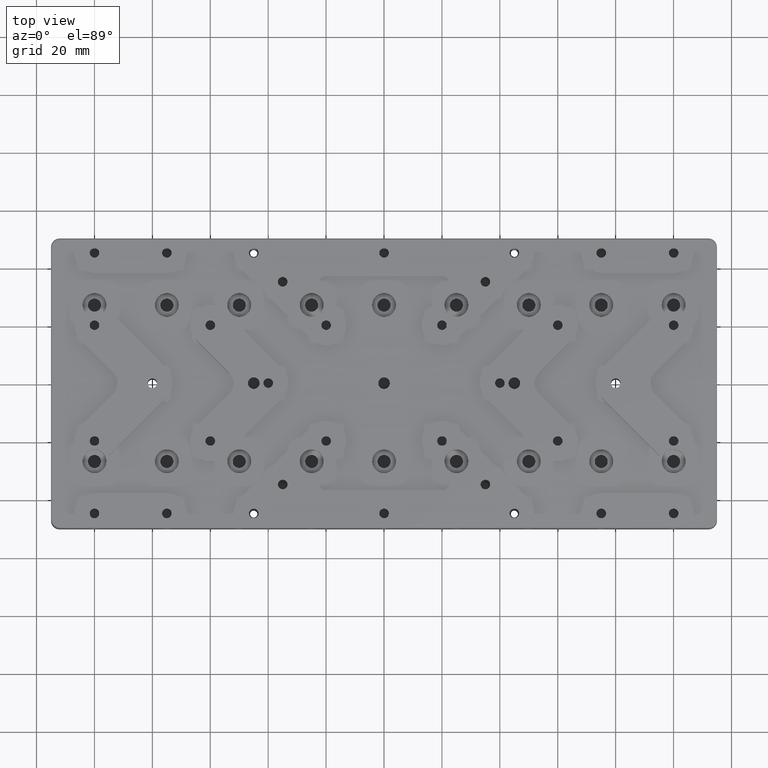
[diagram: clean part render]
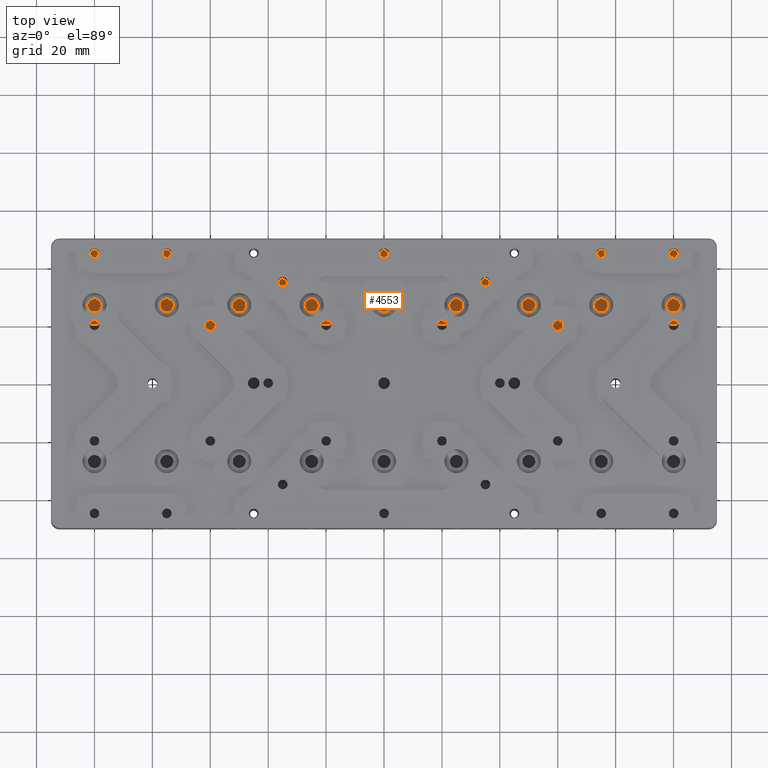
[diagram: same view with one face highlighted and labeled with its STEP entity id]
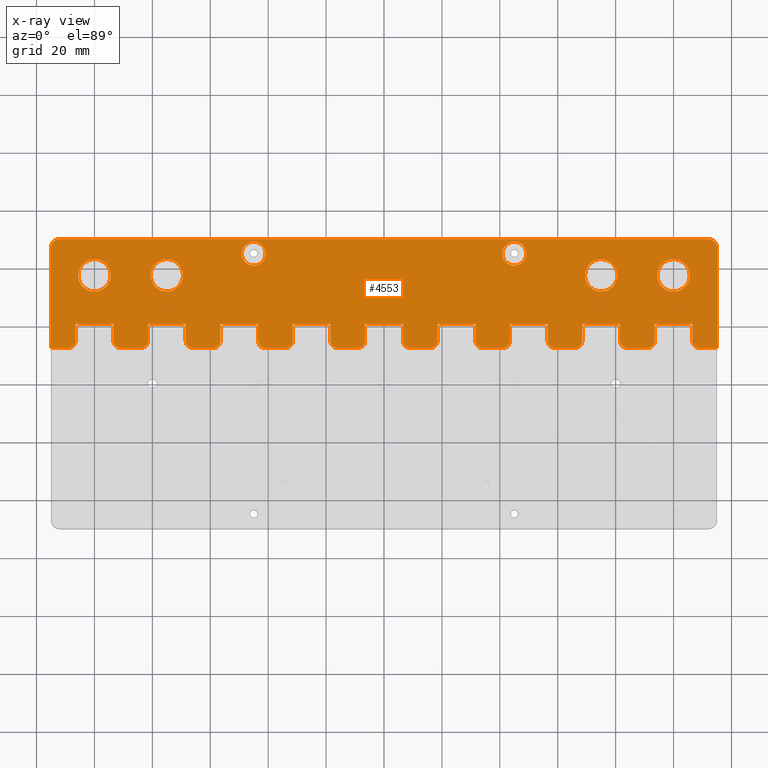
[diagram: x-ray of the same camera — body ghosted, the highlighted face saturated]
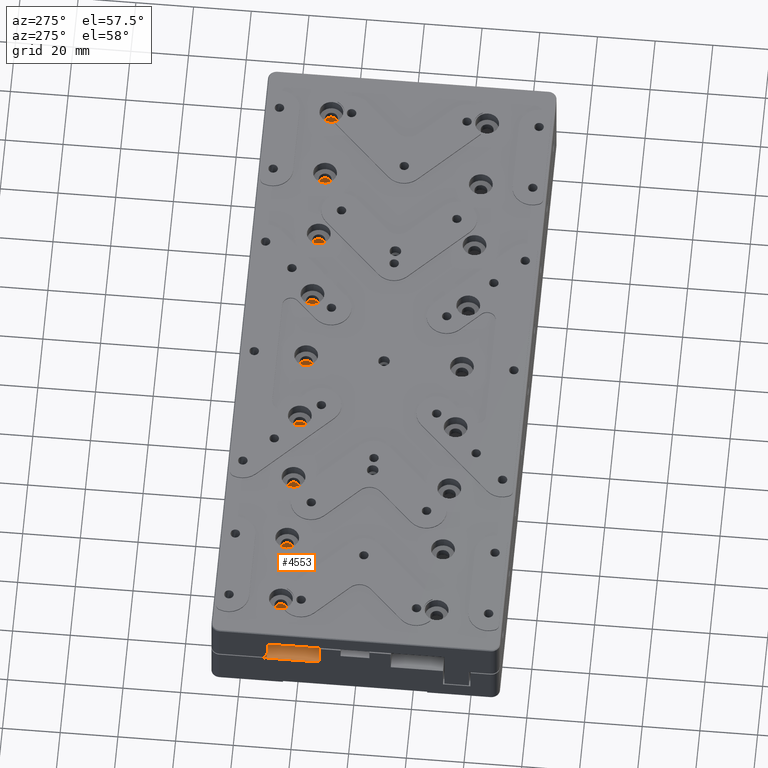
[diagram: same view with one face highlighted and labeled with its STEP entity id]
A machine part, top view. The second image highlights one B-rep face of the part: STEP entity #4553.
The next image is the same camera in x-ray: the body ghosted, the highlighted face saturated — about 0% of this face is hidden behind the body in this view.
A second angle (auxiliary view) of the same face is appended — the face is thin or edge-on in the first view.
In plain terms, the highlighted planar face has unit normal (0, 0, 1).
Its self-contained STEP definition (entity closure, byte-faithful):
#71 = EDGE_CURVE ( 'NONE', #22513, #1664, #8584, .T. ) ;
#74 = CARTESIAN_POINT ( 'NONE',  ( 34.00000000000000000, 12.40000000000000213, 0.000000000000000000 ) ) ;
#86 = EDGE_CURVE ( 'NONE', #4797, #8665, #20092, .T. ) ;
#521 = LINE ( 'NONE', #15767, #4268 ) ;
#584 = VERTEX_POINT ( 'NONE', #20775 ) ;
#593 = CARTESIAN_POINT ( 'NONE',  ( -68.50000000000000000, 20.69999999999999929, 0.000000000000000000 ) ) ;
#612 = DIRECTION ( 'NONE',  ( 1.000000000000000000, 0.000000000000000000, 0.000000000000000000 ) ) ;
#693 = CARTESIAN_POINT ( 'NONE',  ( -31.50000000000000000, 14.90000000000000036, 0.000000000000000000 ) ) ;
#863 = CIRCLE ( 'NONE', #16788, 2.500000000000002220 ) ;
#889 = DIRECTION ( 'NONE',  ( 1.000000000000000000, 0.000000000000000000, 0.000000000000000000 ) ) ;
#977 = EDGE_CURVE ( 'NONE', #1664, #4797, #521, .T. ) ;
#1181 = VERTEX_POINT ( 'NONE', #2330 ) ;
#1225 = ORIENTED_EDGE ( 'NONE', *, *, #5420, .T. ) ;
#1322 = EDGE_CURVE ( 'NONE', #26982, #24273, #2488, .T. ) ;
#1323 = ORIENTED_EDGE ( 'NONE', *, *, #1945, .T. ) ;
#1331 = AXIS2_PLACEMENT_3D ( 'NONE', #19899, #20182, #17776 ) ;
#1364 = EDGE_CURVE ( 'NONE', #7540, #20748, #14955, .T. ) ;
#1376 = VERTEX_POINT ( 'NONE', #27907 ) ;
#1383 = ORIENTED_EDGE ( 'NONE', *, *, #10988, .T. ) ;
#1427 = AXIS2_PLACEMENT_3D ( 'NONE', #17362, #15356, #9224 ) ;
#1428 = CARTESIAN_POINT ( 'NONE',  ( -115.0000000000000000, 12.40000000000000213, 0.000000000000000000 ) ) ;
#1597 = VECTOR ( 'NONE', #17354, 1000.000000000000000 ) ;
#1634 = DIRECTION ( 'NONE',  ( 1.000000000000000000, 0.000000000000000000, 0.000000000000000000 ) ) ;
#1637 = EDGE_CURVE ( 'NONE', #17394, #22261, #18219, .T. ) ;
#1640 = CARTESIAN_POINT ( 'NONE',  ( 34.00000000000000000, 14.90000000000000036, 0.000000000000000000 ) ) ;
#1664 = VERTEX_POINT ( 'NONE', #9801 ) ;
#1712 = AXIS2_PLACEMENT_3D ( 'NONE', #4052, #14594, #1634 ) ;
#1767 = LINE ( 'NONE', #5772, #14088 ) ;
#1790 = CARTESIAN_POINT ( 'NONE',  ( -106.5000000000000000, 50.00000000000000000, 0.000000000000000000 ) ) ;
#1840 = CARTESIAN_POINT ( 'NONE',  ( -59.00000000000000711, 12.40000000000000213, 0.000000000000000000 ) ) ;
#1874 = VERTEX_POINT ( 'NONE', #4308 ) ;
#1884 = VERTEX_POINT ( 'NONE', #16648 ) ;
#1933 = CIRCLE ( 'NONE', #12853, 2.500000000000002220 ) ;
#1941 = ORIENTED_EDGE ( 'NONE', *, *, #14550, .T. ) ;
#1945 = EDGE_CURVE ( 'NONE', #10274, #5407, #10786, .T. ) ;
#1962 = CARTESIAN_POINT ( 'NONE',  ( 18.50000000000000355, 14.90000000000000036, 0.000000000000000000 ) ) ;
#2011 = ORIENTED_EDGE ( 'NONE', *, *, #11923, .T. ) ;
#2017 = CIRCLE ( 'NONE', #15210, 3.000000000000002665 ) ;
#2029 = VERTEX_POINT ( 'NONE', #23749 ) ;
#2090 = CARTESIAN_POINT ( 'NONE',  ( 40.99999999999999289, 12.40000000000000213, 0.000000000000000000 ) ) ;
#2269 = DIRECTION ( 'NONE',  ( -0.000000000000000000, -0.000000000000000000, -1.000000000000000000 ) ) ;
#2330 = CARTESIAN_POINT ( 'NONE',  ( 43.50000000000000000, 14.90000000000000036, 0.000000000000000000 ) ) ;
#2348 = DIRECTION ( 'NONE',  ( 1.000000000000000000, 0.000000000000000000, 0.000000000000000000 ) ) ;
#2373 = DIRECTION ( 'NONE',  ( 1.000000000000000000, 0.000000000000000000, -0.000000000000000000 ) ) ;
#2417 = CARTESIAN_POINT ( 'NONE',  ( 93.50000000000001421, 20.69999999999999929, 0.000000000000000000 ) ) ;
#2488 = CIRCLE ( 'NONE', #15199, 2.500000000000002220 ) ;
#2594 = LINE ( 'NONE', #5010, #28049 ) ;
#2820 = CARTESIAN_POINT ( 'NONE',  ( 56.50000000000000711, 50.00000000000000000, 0.000000000000000000 ) ) ;
#2893 = DIRECTION ( 'NONE',  ( 0.000000000000000000, 0.000000000000000000, 1.000000000000000000 ) ) ;
#2916 = DIRECTION ( 'NONE',  ( 1.000000000000000000, 0.000000000000000000, 0.000000000000000000 ) ) ;
#2935 = LINE ( 'NONE', #22575, #5098 ) ;
#3046 = CARTESIAN_POINT ( 'NONE',  ( -9.000000000000001776, 14.90000000000000036, 0.000000000000000000 ) ) ;
#3054 = ORIENTED_EDGE ( 'NONE', *, *, #71, .T. ) ;
#3075 = VECTOR ( 'NONE', #3097, 1000.000000000000000 ) ;
#3078 = CARTESIAN_POINT ( 'NONE',  ( 6.500000000000005329, 50.00000000000000000, 0.000000000000000000 ) ) ;
#3097 = DIRECTION ( 'NONE',  ( 1.000000000000000000, 0.000000000000000000, -0.000000000000000000 ) ) ;
#3190 = ORIENTED_EDGE ( 'NONE', *, *, #10706, .T. ) ;
#3241 = FACE_BOUND ( 'NONE', #21903, .T. ) ;
#3256 = DIRECTION ( 'NONE',  ( 1.000000000000000000, 0.000000000000000000, -0.000000000000000000 ) ) ;
#3295 = EDGE_CURVE ( 'NONE', #15384, #15462, #27131, .T. ) ;
#3386 = FACE_BOUND ( 'NONE', #26650, .T. ) ;
#3407 = EDGE_CURVE ( 'NONE', #24273, #28019, #5792, .T. ) ;
#3414 = ORIENTED_EDGE ( 'NONE', *, *, #13687, .T. ) ;
#3416 = CARTESIAN_POINT ( 'NONE',  ( 91.00000000000000000, 12.40000000000000213, 0.000000000000000000 ) ) ;
#3422 = DIRECTION ( 'NONE',  ( -0.000000000000000000, 1.000000000000000000, 0.000000000000000000 ) ) ;
#3481 = DIRECTION ( 'NONE',  ( 1.000000000000000000, 0.000000000000000000, -0.000000000000000000 ) ) ;
#3547 = CARTESIAN_POINT ( 'NONE',  ( 115.0000000000000000, 12.40000000000000213, 0.000000000000000000 ) ) ;
#3564 = LINE ( 'NONE', #7986, #9082 ) ;
#3715 = VECTOR ( 'NONE', #24119, 1000.000000000000000 ) ;
#3757 = VERTEX_POINT ( 'NONE', #24713 ) ;
#3808 = ORIENTED_EDGE ( 'NONE', *, *, #27633, .T. ) ;
#3841 = CARTESIAN_POINT ( 'NONE',  ( 81.50000000000000000, 20.69999999999999929, 0.000000000000000000 ) ) ;
#3899 = EDGE_CURVE ( 'NONE', #4247, #24846, #2594, .T. ) ;
#4028 = DIRECTION ( 'NONE',  ( 0.000000000000000000, -1.000000000000000000, -0.000000000000000000 ) ) ;
#4052 = CARTESIAN_POINT ( 'NONE',  ( -100.0000000000000000, 37.50000000000000000, 0.000000000000000000 ) ) ;
#4066 = EDGE_CURVE ( 'NONE', #5390, #19619, #14097, .T. ) ;
#4147 = VERTEX_POINT ( 'NONE', #1840 ) ;
#4164 = LINE ( 'NONE', #6600, #26947 ) ;
#4216 = ORIENTED_EDGE ( 'NONE', *, *, #13749, .T. ) ;
#4247 = VERTEX_POINT ( 'NONE', #8530 ) ;
#4268 = VECTOR ( 'NONE', #20324, 1000.000000000000000 ) ;
#4272 = CARTESIAN_POINT ( 'NONE',  ( -56.50000000000000000, 14.90000000000000036, 0.000000000000000000 ) ) ;
#4308 = CARTESIAN_POINT ( 'NONE',  ( -94.40000000000000568, 37.50000000000000000, 0.000000000000000000 ) ) ;
#4378 = CARTESIAN_POINT ( 'NONE',  ( -115.0000000000000000, 50.00000000000000000, 0.000000000000000000 ) ) ;
#4467 = CARTESIAN_POINT ( 'NONE',  ( 43.50000000000000000, 50.00000000000000000, 0.000000000000000000 ) ) ;
#4553 = ADVANCED_FACE ( 'NONE', ( #3386, #22746, #3241, #9919, #18621, #27289, #7797 ), #25172, .T. ) ;
#4748 = VECTOR ( 'NONE', #21376, 1000.000000000000000 ) ;
#4797 = VERTEX_POINT ( 'NONE', #8783 ) ;
#4945 = EDGE_CURVE ( 'NONE', #20748, #3757, #5356, .T. ) ;
#5010 = CARTESIAN_POINT ( 'NONE',  ( 31.50000000000001421, 50.00000000000000000, 0.000000000000000000 ) ) ;
#5050 = CARTESIAN_POINT ( 'NONE',  ( 16.00000000000000000, 14.90000000000000036, 0.000000000000000000 ) ) ;
#5076 = CIRCLE ( 'NONE', #12336, 2.500000000000002220 ) ;
#5098 = VECTOR ( 'NONE', #3481, 1000.000000000000000 ) ;
#5121 = EDGE_CURVE ( 'NONE', #15855, #27773, #17275, .T. ) ;
#5129 = ORIENTED_EDGE ( 'NONE', *, *, #27483, .T. ) ;
#5142 = EDGE_LOOP ( 'NONE', ( #12444, #16252, #6150, #9802, #27520, #16762, #26300, #23615, #13172, #5472, #4216, #23472, #7382, #3190, #1941, #19896, #21849, #23094, #22669, #3054, #9927, #8926, #25123, #9659, #16871, #12272, #27327, #18823, #1323, #8296, #13983, #10969, #18827, #10753, #3808, #9453, #23703, #15148, #12026, #18429, #1225, #24262, #5129, #14976, #25542, #18249, #25681, #13981, #10442, #9669, #27031, #25381, #2011, #12332, #15606, #20870, #3414, #25958, #6606, #7910 ) ) ;
#5180 = CARTESIAN_POINT ( 'NONE',  ( 80.59999999999999432, 37.50000000000000000, 0.000000000000000000 ) ) ;
#5242 = DIRECTION ( 'NONE',  ( 1.000000000000000000, 0.000000000000000000, -0.000000000000000000 ) ) ;
#5273 = ORIENTED_EDGE ( 'NONE', *, *, #15686, .T. ) ;
#5313 = CARTESIAN_POINT ( 'NONE',  ( -106.5000000000000000, 14.90000000000000036, 0.000000000000000000 ) ) ;
#5318 = EDGE_CURVE ( 'NONE', #6612, #26830, #27183, .T. ) ;
#5356 = LINE ( 'NONE', #3078, #17730 ) ;
#5390 = VERTEX_POINT ( 'NONE', #27480 ) ;
#5407 = VERTEX_POINT ( 'NONE', #14398 ) ;
#5420 = EDGE_CURVE ( 'NONE', #20789, #1376, #3564, .T. ) ;
#5468 = CARTESIAN_POINT ( 'NONE',  ( 43.50000000000000711, 20.69999999999999929, 0.000000000000000000 ) ) ;
#5472 = ORIENTED_EDGE ( 'NONE', *, *, #6025, .T. ) ;
#5486 = CIRCLE ( 'NONE', #15491, 2.500000000000002220 ) ;
#5716 = EDGE_CURVE ( 'NONE', #14397, #15384, #20908, .T. ) ;
#5763 = CARTESIAN_POINT ( 'NONE',  ( -115.0000000000000000, 12.40000000000000213, 0.000000000000000000 ) ) ;
#5772 = CARTESIAN_POINT ( 'NONE',  ( -93.50000000000000000, 50.00000000000000000, 0.000000000000000000 ) ) ;
#5792 = LINE ( 'NONE', #1790, #14846 ) ;
#5862 = VERTEX_POINT ( 'NONE', #26018 ) ;
#5939 = DIRECTION ( 'NONE',  ( 0.000000000000000000, 0.000000000000000000, 1.000000000000000000 ) ) ;
#5993 = AXIS2_PLACEMENT_3D ( 'NONE', #17283, #26109, #12999 ) ;
#6021 = CARTESIAN_POINT ( 'NONE',  ( -109.0000000000000000, 12.40000000000000213, 0.000000000000000000 ) ) ;
#6025 = EDGE_CURVE ( 'NONE', #26609, #1884, #8616, .T. ) ;
#6150 = ORIENTED_EDGE ( 'NONE', *, *, #19128, .T. ) ;
#6173 = VECTOR ( 'NONE', #7763, 1000.000000000000000 ) ;
#6244 = CARTESIAN_POINT ( 'NONE',  ( -115.0000000000000000, 12.40000000000000213, 0.000000000000000000 ) ) ;
#6326 = VECTOR ( 'NONE', #10211, 1000.000000000000000 ) ;
#6381 = ORIENTED_EDGE ( 'NONE', *, *, #22004, .T. ) ;
#6484 = AXIS2_PLACEMENT_3D ( 'NONE', #9034, #26270, #2348 ) ;
#6521 = VECTOR ( 'NONE', #15079, 1000.000000000000000 ) ;
#6600 = CARTESIAN_POINT ( 'NONE',  ( -81.50000000000000000, 50.00000000000000000, 0.000000000000000000 ) ) ;
#6606 = ORIENTED_EDGE ( 'NONE', *, *, #25292, .T. ) ;
#6612 = VERTEX_POINT ( 'NONE', #14000 ) ;
#6634 = LINE ( 'NONE', #21711, #7228 ) ;
#6753 = CARTESIAN_POINT ( 'NONE',  ( -115.0000000000000000, 20.69999999999999929, 0.000000000000000000 ) ) ;
#6902 = VERTEX_POINT ( 'NONE', #593 ) ;
#6998 = EDGE_CURVE ( 'NONE', #26227, #27291, #12355, .T. ) ;
#6999 = AXIS2_PLACEMENT_3D ( 'NONE', #5050, #18421, #2916 ) ;
#7159 = DIRECTION ( 'NONE',  ( 1.000000000000000000, 0.000000000000000000, 0.000000000000000000 ) ) ;
#7162 = CARTESIAN_POINT ( 'NONE',  ( -56.50000000000000000, 20.69999999999999929, 0.000000000000000000 ) ) ;
#7189 = CARTESIAN_POINT ( 'NONE',  ( -31.50000000000000000, 20.69999999999999929, 0.000000000000000000 ) ) ;
#7200 = VECTOR ( 'NONE', #14617, 1000.000000000000000 ) ;
#7228 = VECTOR ( 'NONE', #13591, 1000.000000000000000 ) ;
#7234 = VERTEX_POINT ( 'NONE', #11354 ) ;
#7241 = AXIS2_PLACEMENT_3D ( 'NONE', #13965, #26919, #26657 ) ;
#7382 = ORIENTED_EDGE ( 'NONE', *, *, #6998, .T. ) ;
#7436 = AXIS2_PLACEMENT_3D ( 'NONE', #13081, #2269, #10948 ) ;
#7540 = VERTEX_POINT ( 'NONE', #19025 ) ;
#7620 = CARTESIAN_POINT ( 'NONE',  ( 59.00000000000001421, 12.40000000000000213, 0.000000000000000000 ) ) ;
#7752 = CARTESIAN_POINT ( 'NONE',  ( -34.00000000000000000, 12.40000000000000213, 0.000000000000000000 ) ) ;
#7763 = DIRECTION ( 'NONE',  ( 1.000000000000000000, 0.000000000000000000, -0.000000000000000000 ) ) ;
#7797 = FACE_OUTER_BOUND ( 'NONE', #5142, .T. ) ;
#7904 = DIRECTION ( 'NONE',  ( 0.000000000000000000, 0.000000000000000000, 1.000000000000000000 ) ) ;
#7910 = ORIENTED_EDGE ( 'NONE', *, *, #1322, .T. ) ;
#7967 = CARTESIAN_POINT ( 'NONE',  ( -115.0000000000000000, 12.40000000000000213, 0.000000000000000000 ) ) ;
#7986 = CARTESIAN_POINT ( 'NONE',  ( -115.0000000000000000, 12.40000000000000213, 0.000000000000000000 ) ) ;
#8067 = LINE ( 'NONE', #18905, #23257 ) ;
#8141 = CIRCLE ( 'NONE', #7241, 3.000000000000002665 ) ;
#8174 = CARTESIAN_POINT ( 'NONE',  ( 115.0000000000000000, 47.00000000000000000, 0.000000000000000000 ) ) ;
#8296 = ORIENTED_EDGE ( 'NONE', *, *, #26782, .T. ) ;
#8466 = LINE ( 'NONE', #15012, #15836 ) ;
#8530 = CARTESIAN_POINT ( 'NONE',  ( 31.50000000000000711, 20.69999999999999929, 0.000000000000000000 ) ) ;
#8579 = AXIS2_PLACEMENT_3D ( 'NONE', #26361, #15537, #18227 ) ;
#8584 = LINE ( 'NONE', #6753, #3715 ) ;
#8616 = CIRCLE ( 'NONE', #1331, 2.500000000000002220 ) ;
#8634 = AXIS2_PLACEMENT_3D ( 'NONE', #13868, #25105, #13727 ) ;
#8665 = VERTEX_POINT ( 'NONE', #25325 ) ;
#8699 = VERTEX_POINT ( 'NONE', #12775 ) ;
#8756 = VECTOR ( 'NONE', #21919, 1000.000000000000000 ) ;
#8783 = CARTESIAN_POINT ( 'NONE',  ( -18.50000000000000355, 14.90000000000000036, 0.000000000000000000 ) ) ;
#8831 = CARTESIAN_POINT ( 'NONE',  ( 68.49999999999998579, 50.00000000000000000, 0.000000000000000000 ) ) ;
#8900 = DIRECTION ( 'NONE',  ( 1.000000000000000000, 0.000000000000000000, -0.000000000000000000 ) ) ;
#8926 = ORIENTED_EDGE ( 'NONE', *, *, #86, .T. ) ;
#9034 = CARTESIAN_POINT ( 'NONE',  ( -75.00000000000000000, 37.50000000000000000, 0.000000000000000000 ) ) ;
#9056 = EDGE_CURVE ( 'NONE', #1181, #14397, #19140, .T. ) ;
#9082 = VECTOR ( 'NONE', #23929, 1000.000000000000000 ) ;
#9224 = DIRECTION ( 'NONE',  ( 1.000000000000000000, 0.000000000000000000, 0.000000000000000000 ) ) ;
#9305 = CARTESIAN_POINT ( 'NONE',  ( -115.0000000000000000, 20.69999999999999929, 0.000000000000000000 ) ) ;
#9363 = VERTEX_POINT ( 'NONE', #9838 ) ;
#9417 = CARTESIAN_POINT ( 'NONE',  ( -9.000000000000000000, 12.40000000000000213, 0.000000000000000000 ) ) ;
#9453 = ORIENTED_EDGE ( 'NONE', *, *, #19690, .T. ) ;
#9659 = ORIENTED_EDGE ( 'NONE', *, *, #22572, .T. ) ;
#9669 = ORIENTED_EDGE ( 'NONE', *, *, #24326, .T. ) ;
#9745 = DIRECTION ( 'NONE',  ( 1.000000000000000000, 0.000000000000000000, 0.000000000000000000 ) ) ;
#9789 = CIRCLE ( 'NONE', #27064, 2.500000000000002220 ) ;
#9801 = CARTESIAN_POINT ( 'NONE',  ( -18.50000000000000355, 20.69999999999999929, 0.000000000000000000 ) ) ;
#9802 = ORIENTED_EDGE ( 'NONE', *, *, #22808, .T. ) ;
#9838 = CARTESIAN_POINT ( 'NONE',  ( 84.00000000000000000, 12.40000000000000213, 0.000000000000000000 ) ) ;
#9919 = FACE_BOUND ( 'NONE', #27985, .T. ) ;
#9927 = ORIENTED_EDGE ( 'NONE', *, *, #977, .T. ) ;
#9964 = LINE ( 'NONE', #1428, #14036 ) ;
#9996 = VERTEX_POINT ( 'NONE', #1962 ) ;
#10073 = CARTESIAN_POINT ( 'NONE',  ( 56.50000000000000711, 14.90000000000000036, 0.000000000000000000 ) ) ;
#10106 = LINE ( 'NONE', #8831, #24733 ) ;
#10173 = DIRECTION ( 'NONE',  ( 1.000000000000000000, 0.000000000000000000, 0.000000000000000000 ) ) ;
#10211 = DIRECTION ( 'NONE',  ( 1.000000000000000000, 0.000000000000000000, -0.000000000000000000 ) ) ;
#10234 = LINE ( 'NONE', #7967, #18172 ) ;
#10243 = VECTOR ( 'NONE', #2373, 1000.000000000000000 ) ;
#10274 = VERTEX_POINT ( 'NONE', #18468 ) ;
#10380 = CARTESIAN_POINT ( 'NONE',  ( -40.87499999999999289, 45.00000000000000000, 0.000000000000000000 ) ) ;
#10440 = DIRECTION ( 'NONE',  ( -0.000000000000000000, 1.000000000000000000, 0.000000000000000000 ) ) ;
#10442 = ORIENTED_EDGE ( 'NONE', *, *, #4066, .T. ) ;
#10583 = VERTEX_POINT ( 'NONE', #74 ) ;
#10669 = CIRCLE ( 'NONE', #12495, 2.500000000000002220 ) ;
#10706 = EDGE_CURVE ( 'NONE', #27291, #8699, #2935, .T. ) ;
#10711 = CARTESIAN_POINT ( 'NONE',  ( -91.00000000000000000, 14.90000000000000036, 0.000000000000000000 ) ) ;
#10753 = ORIENTED_EDGE ( 'NONE', *, *, #12921, .T. ) ;
#10786 = LINE ( 'NONE', #6244, #1597 ) ;
#10863 = VERTEX_POINT ( 'NONE', #5763 ) ;
#10917 = DIRECTION ( 'NONE',  ( 1.000000000000000000, 0.000000000000000000, -0.000000000000000000 ) ) ;
#10948 = DIRECTION ( 'NONE',  ( 1.000000000000000000, 0.000000000000000000, 0.000000000000000000 ) ) ;
#10969 = ORIENTED_EDGE ( 'NONE', *, *, #17172, .T. ) ;
#10988 = EDGE_CURVE ( 'NONE', #22407, #22407, #14237, .T. ) ;
#11062 = CIRCLE ( 'NONE', #7436, 4.125000000000003553 ) ;
#11167 = CARTESIAN_POINT ( 'NONE',  ( 68.50000000000000000, 14.90000000000000036, 0.000000000000000000 ) ) ;
#11272 = DIRECTION ( 'NONE',  ( 0.000000000000000000, 0.000000000000000000, 1.000000000000000000 ) ) ;
#11354 = CARTESIAN_POINT ( 'NONE',  ( -115.0000000000000000, 47.00000000000000000, 0.000000000000000000 ) ) ;
#11405 = EDGE_CURVE ( 'NONE', #28019, #21222, #25164, .T. ) ;
#11496 = AXIS2_PLACEMENT_3D ( 'NONE', #10711, #11272, #17273 ) ;
#11556 = LINE ( 'NONE', #15823, #23768 ) ;
#11661 = VERTEX_POINT ( 'NONE', #15789 ) ;
#11666 = DIRECTION ( 'NONE',  ( 1.000000000000000000, 0.000000000000000000, -0.000000000000000000 ) ) ;
#11745 = VECTOR ( 'NONE', #5242, 1000.000000000000000 ) ;
#11787 = LINE ( 'NONE', #16334, #11745 ) ;
#11818 = EDGE_CURVE ( 'NONE', #26437, #6902, #6634, .T. ) ;
#11894 = CARTESIAN_POINT ( 'NONE',  ( 91.00000000000000000, 14.90000000000000036, 0.000000000000000000 ) ) ;
#11898 = DIRECTION ( 'NONE',  ( 0.000000000000000000, 0.000000000000000000, 1.000000000000000000 ) ) ;
#11923 = EDGE_CURVE ( 'NONE', #26076, #16713, #18143, .T. ) ;
#11944 = CARTESIAN_POINT ( 'NONE',  ( -115.0000000000000000, 50.00000000000000000, 0.000000000000000000 ) ) ;
#12026 = ORIENTED_EDGE ( 'NONE', *, *, #3295, .T. ) ;
#12112 = CARTESIAN_POINT ( 'NONE',  ( -115.0000000000000000, 12.40000000000000213, 0.000000000000000000 ) ) ;
#12240 = DIRECTION ( 'NONE',  ( -0.000000000000000000, 1.000000000000000000, 0.000000000000000000 ) ) ;
#12272 = ORIENTED_EDGE ( 'NONE', *, *, #1364, .T. ) ;
#12281 = VERTEX_POINT ( 'NONE', #25246 ) ;
#12296 = VECTOR ( 'NONE', #24665, 1000.000000000000000 ) ;
#12330 = EDGE_CURVE ( 'NONE', #16722, #26076, #863, .T. ) ;
#12332 = ORIENTED_EDGE ( 'NONE', *, *, #26254, .F. ) ;
#12336 = AXIS2_PLACEMENT_3D ( 'NONE', #26305, #21888, #23739 ) ;
#12355 = LINE ( 'NONE', #25456, #12296 ) ;
#12419 = AXIS2_PLACEMENT_3D ( 'NONE', #17659, #17091, #25770 ) ;
#12444 = ORIENTED_EDGE ( 'NONE', *, *, #3407, .T. ) ;
#12495 = AXIS2_PLACEMENT_3D ( 'NONE', #16759, #5939, #17186 ) ;
#12583 = DIRECTION ( 'NONE',  ( 0.000000000000000000, -1.000000000000000000, -0.000000000000000000 ) ) ;
#12584 = CARTESIAN_POINT ( 'NONE',  ( 112.0000000000000000, 50.00000000000000000, 0.000000000000000000 ) ) ;
#12775 = CARTESIAN_POINT ( 'NONE',  ( -43.50000000000000711, 20.69999999999999929, 0.000000000000000000 ) ) ;
#12853 = AXIS2_PLACEMENT_3D ( 'NONE', #26209, #17238, #26060 ) ;
#12885 = VECTOR ( 'NONE', #8900, 1000.000000000000000 ) ;
#12921 = EDGE_CURVE ( 'NONE', #24846, #10583, #5486, .T. ) ;
#12947 = LINE ( 'NONE', #28036, #8756 ) ;
#12999 = DIRECTION ( 'NONE',  ( 1.000000000000000000, 0.000000000000000000, 0.000000000000000000 ) ) ;
#13081 = CARTESIAN_POINT ( 'NONE',  ( -45.00000000000000000, 45.00000000000000000, 0.000000000000000000 ) ) ;
#13172 = ORIENTED_EDGE ( 'NONE', *, *, #16012, .T. ) ;
#13196 = CARTESIAN_POINT ( 'NONE',  ( -43.50000000000000000, 14.90000000000000036, 0.000000000000000000 ) ) ;
#13296 = EDGE_CURVE ( 'NONE', #12281, #12281, #17764, .T. ) ;
#13437 = EDGE_LOOP ( 'NONE', ( #15183 ) ) ;
#13440 = VECTOR ( 'NONE', #10440, 1000.000000000000000 ) ;
#13447 = DIRECTION ( 'NONE',  ( -0.000000000000000000, -0.000000000000000000, -1.000000000000000000 ) ) ;
#13591 = DIRECTION ( 'NONE',  ( 1.000000000000000000, 0.000000000000000000, -0.000000000000000000 ) ) ;
#13656 = DIRECTION ( 'NONE',  ( 0.000000000000000000, 0.000000000000000000, 1.000000000000000000 ) ) ;
#13660 = CARTESIAN_POINT ( 'NONE',  ( -115.0000000000000000, 12.40000000000000213, 0.000000000000000000 ) ) ;
#13687 = EDGE_CURVE ( 'NONE', #17394, #7234, #8141, .T. ) ;
#13727 = DIRECTION ( 'NONE',  ( 1.000000000000000000, 0.000000000000000000, 0.000000000000000000 ) ) ;
#13749 = EDGE_CURVE ( 'NONE', #1884, #4147, #9964, .T. ) ;
#13763 = CIRCLE ( 'NONE', #11496, 2.500000000000002220 ) ;
#13868 = CARTESIAN_POINT ( 'NONE',  ( 45.00000000000000000, 45.00000000000000000, 0.000000000000000000 ) ) ;
#13892 = EDGE_CURVE ( 'NONE', #1376, #24197, #1933, .T. ) ;
#13965 = CARTESIAN_POINT ( 'NONE',  ( -112.0000000000000000, 47.00000000000000000, 0.000000000000000000 ) ) ;
#13981 = ORIENTED_EDGE ( 'NONE', *, *, #20770, .T. ) ;
#13983 = ORIENTED_EDGE ( 'NONE', *, *, #17476, .T. ) ;
#13993 = DIRECTION ( 'NONE',  ( 0.000000000000000000, 0.000000000000000000, 1.000000000000000000 ) ) ;
#13994 = CARTESIAN_POINT ( 'NONE',  ( -115.0000000000000000, 12.40000000000000213, 0.000000000000000000 ) ) ;
#14000 = CARTESIAN_POINT ( 'NONE',  ( -91.00000000000000000, 12.40000000000000213, 0.000000000000000000 ) ) ;
#14021 = DIRECTION ( 'NONE',  ( 1.000000000000000000, 0.000000000000000000, 0.000000000000000000 ) ) ;
#14036 = VECTOR ( 'NONE', #18664, 1000.000000000000000 ) ;
#14088 = VECTOR ( 'NONE', #12583, 1000.000000000000000 ) ;
#14097 = LINE ( 'NONE', #22922, #18089 ) ;
#14105 = VECTOR ( 'NONE', #22931, 1000.000000000000000 ) ;
#14237 = CIRCLE ( 'NONE', #8579, 5.599999999999994316 ) ;
#14357 = EDGE_CURVE ( 'NONE', #4147, #26227, #5076, .T. ) ;
#14397 = VERTEX_POINT ( 'NONE', #5468 ) ;
#14398 = CARTESIAN_POINT ( 'NONE',  ( 16.00000000000000000, 12.40000000000000213, 0.000000000000000000 ) ) ;
#14467 = AXIS2_PLACEMENT_3D ( 'NONE', #4378, #14900, #10917 ) ;
#14479 = CARTESIAN_POINT ( 'NONE',  ( -112.0000000000000000, 50.00000000000000000, 0.000000000000000000 ) ) ;
#14550 = EDGE_CURVE ( 'NONE', #8699, #23656, #19412, .T. ) ;
#14589 = CARTESIAN_POINT ( 'NONE',  ( -115.0000000000000000, 12.40000000000000213, 0.000000000000000000 ) ) ;
#14594 = DIRECTION ( 'NONE',  ( -0.000000000000000000, -0.000000000000000000, -1.000000000000000000 ) ) ;
#14615 = DIRECTION ( 'NONE',  ( -0.000000000000000000, 1.000000000000000000, 0.000000000000000000 ) ) ;
#14617 = DIRECTION ( 'NONE',  ( 1.000000000000000000, 0.000000000000000000, -0.000000000000000000 ) ) ;
#14621 = CARTESIAN_POINT ( 'NONE',  ( -81.50000000000000000, 14.90000000000000036, 0.000000000000000000 ) ) ;
#14635 = CIRCLE ( 'NONE', #20563, 2.500000000000002220 ) ;
#14703 = AXIS2_PLACEMENT_3D ( 'NONE', #19792, #11898, #22196 ) ;
#14760 = CARTESIAN_POINT ( 'NONE',  ( 31.50000000000000711, 14.90000000000000036, 0.000000000000000000 ) ) ;
#14846 = VECTOR ( 'NONE', #14615, 1000.000000000000000 ) ;
#14900 = DIRECTION ( 'NONE',  ( 0.000000000000000000, 0.000000000000000000, 1.000000000000000000 ) ) ;
#14923 = VECTOR ( 'NONE', #26118, 1000.000000000000000 ) ;
#14955 = LINE ( 'NONE', #23648, #4748 ) ;
#14976 = ORIENTED_EDGE ( 'NONE', *, *, #22325, .T. ) ;
#15012 = CARTESIAN_POINT ( 'NONE',  ( -31.50000000000000000, 50.00000000000000000, 0.000000000000000000 ) ) ;
#15046 = CIRCLE ( 'NONE', #26420, 2.500000000000002220 ) ;
#15079 = DIRECTION ( 'NONE',  ( 0.000000000000000000, -1.000000000000000000, -0.000000000000000000 ) ) ;
#15080 = VERTEX_POINT ( 'NONE', #25909 ) ;
#15148 = ORIENTED_EDGE ( 'NONE', *, *, #5716, .T. ) ;
#15183 = ORIENTED_EDGE ( 'NONE', *, *, #22415, .T. ) ;
#15199 = AXIS2_PLACEMENT_3D ( 'NONE', #22393, #2893, #20269 ) ;
#15210 = AXIS2_PLACEMENT_3D ( 'NONE', #19999, #13447, #612 ) ;
#15240 = DIRECTION ( 'NONE',  ( -0.000000000000000000, 1.000000000000000000, 0.000000000000000000 ) ) ;
#15356 = DIRECTION ( 'NONE',  ( 0.000000000000000000, 0.000000000000000000, 1.000000000000000000 ) ) ;
#15384 = VERTEX_POINT ( 'NONE', #20630 ) ;
#15462 = VERTEX_POINT ( 'NONE', #10073 ) ;
#15491 = AXIS2_PLACEMENT_3D ( 'NONE', #1640, #23702, #19019 ) ;
#15537 = DIRECTION ( 'NONE',  ( -0.000000000000000000, -0.000000000000000000, -1.000000000000000000 ) ) ;
#15552 = DIRECTION ( 'NONE',  ( -0.000000000000000000, 1.000000000000000000, 0.000000000000000000 ) ) ;
#15589 = AXIS2_PLACEMENT_3D ( 'NONE', #3046, #13993, #889 ) ;
#15606 = ORIENTED_EDGE ( 'NONE', *, *, #24321, .F. ) ;
#15616 = CARTESIAN_POINT ( 'NONE',  ( -115.0000000000000000, 12.40000000000000213, 0.000000000000000000 ) ) ;
#15655 = CARTESIAN_POINT ( 'NONE',  ( 41.00000000000000000, 14.90000000000000036, 0.000000000000000000 ) ) ;
#15686 = EDGE_CURVE ( 'NONE', #1874, #1874, #21745, .T. ) ;
#15730 = EDGE_CURVE ( 'NONE', #27773, #22513, #8466, .T. ) ;
#15767 = CARTESIAN_POINT ( 'NONE',  ( -18.50000000000000355, 50.00000000000000000, 0.000000000000000000 ) ) ;
#15789 = CARTESIAN_POINT ( 'NONE',  ( 105.5999999999999943, 37.50000000000000000, 0.000000000000000000 ) ) ;
#15791 = CARTESIAN_POINT ( 'NONE',  ( -81.50000000000000000, 20.69999999999999929, 0.000000000000000000 ) ) ;
#15823 = CARTESIAN_POINT ( 'NONE',  ( -115.0000000000000000, 0.000000000000000000, 0.000000000000000000 ) ) ;
#15836 = VECTOR ( 'NONE', #23700, 1000.000000000000000 ) ;
#15855 = VERTEX_POINT ( 'NONE', #7752 ) ;
#16012 = EDGE_CURVE ( 'NONE', #6902, #26609, #17436, .T. ) ;
#16077 = VERTEX_POINT ( 'NONE', #23838 ) ;
#16163 = CIRCLE ( 'NONE', #23893, 5.599999999999994316 ) ;
#16165 = CARTESIAN_POINT ( 'NONE',  ( 6.500000000000003553, 20.69999999999999929, 0.000000000000000000 ) ) ;
#16252 = ORIENTED_EDGE ( 'NONE', *, *, #11405, .T. ) ;
#16276 = CARTESIAN_POINT ( 'NONE',  ( -84.00000000000000000, 12.40000000000000213, 0.000000000000000000 ) ) ;
#16334 = CARTESIAN_POINT ( 'NONE',  ( -115.0000000000000000, 20.69999999999999929, 0.000000000000000000 ) ) ;
#16648 = CARTESIAN_POINT ( 'NONE',  ( -66.00000000000000000, 12.40000000000000213, 0.000000000000000000 ) ) ;
#16713 = VERTEX_POINT ( 'NONE', #3547 ) ;
#16722 = VERTEX_POINT ( 'NONE', #18226 ) ;
#16759 = CARTESIAN_POINT ( 'NONE',  ( 59.00000000000000711, 14.90000000000000036, 0.000000000000000000 ) ) ;
#16762 = ORIENTED_EDGE ( 'NONE', *, *, #23282, .T. ) ;
#16788 = AXIS2_PLACEMENT_3D ( 'NONE', #24390, #24658, #7159 ) ;
#16871 = ORIENTED_EDGE ( 'NONE', *, *, #26161, .T. ) ;
#16893 = LINE ( 'NONE', #25436, #7200 ) ;
#16959 = EDGE_CURVE ( 'NONE', #9363, #28164, #10234, .T. ) ;
#16983 = CARTESIAN_POINT ( 'NONE',  ( 18.50000000000000355, 20.69999999999999929, 0.000000000000000000 ) ) ;
#17091 = DIRECTION ( 'NONE',  ( 0.000000000000000000, 0.000000000000000000, 1.000000000000000000 ) ) ;
#17172 = EDGE_CURVE ( 'NONE', #27046, #4247, #11787, .T. ) ;
#17186 = DIRECTION ( 'NONE',  ( 1.000000000000000000, 0.000000000000000000, 0.000000000000000000 ) ) ;
#17238 = DIRECTION ( 'NONE',  ( 0.000000000000000000, 0.000000000000000000, 1.000000000000000000 ) ) ;
#17273 = DIRECTION ( 'NONE',  ( 1.000000000000000000, 0.000000000000000000, 0.000000000000000000 ) ) ;
#17275 = CIRCLE ( 'NONE', #20901, 2.500000000000002220 ) ;
#17283 = CARTESIAN_POINT ( 'NONE',  ( -16.00000000000000000, 14.90000000000000036, 0.000000000000000000 ) ) ;
#17331 = DIRECTION ( 'NONE',  ( -0.000000000000000000, 1.000000000000000000, 0.000000000000000000 ) ) ;
#17338 = EDGE_CURVE ( 'NONE', #8665, #27279, #16893, .T. ) ;
#17354 = DIRECTION ( 'NONE',  ( 1.000000000000000000, 0.000000000000000000, -0.000000000000000000 ) ) ;
#17362 = CARTESIAN_POINT ( 'NONE',  ( 9.000000000000001776, 14.90000000000000036, 0.000000000000000000 ) ) ;
#17394 = VERTEX_POINT ( 'NONE', #14479 ) ;
#17436 = LINE ( 'NONE', #19003, #14923 ) ;
#17446 = CIRCLE ( 'NONE', #6999, 2.499999999999998668 ) ;
#17476 = EDGE_CURVE ( 'NONE', #9996, #27046, #19749, .T. ) ;
#17568 = DIRECTION ( 'NONE',  ( 0.000000000000000000, 0.000000000000000000, 1.000000000000000000 ) ) ;
#17659 = CARTESIAN_POINT ( 'NONE',  ( -84.00000000000000000, 14.90000000000000036, 0.000000000000000000 ) ) ;
#17730 = VECTOR ( 'NONE', #20318, 1000.000000000000000 ) ;
#17764 = CIRCLE ( 'NONE', #8634, 4.125000000000003553 ) ;
#17776 = DIRECTION ( 'NONE',  ( 1.000000000000000000, 0.000000000000000000, 0.000000000000000000 ) ) ;
#17868 = CARTESIAN_POINT ( 'NONE',  ( -93.49999999999998579, 20.69999999999999929, 0.000000000000000000 ) ) ;
#18011 = DIRECTION ( 'NONE',  ( 1.000000000000000000, 0.000000000000000000, -0.000000000000000000 ) ) ;
#18089 = VECTOR ( 'NONE', #12240, 1000.000000000000000 ) ;
#18143 = LINE ( 'NONE', #13994, #24962 ) ;
#18172 = VECTOR ( 'NONE', #18935, 1000.000000000000000 ) ;
#18215 = VERTEX_POINT ( 'NONE', #3841 ) ;
#18219 = LINE ( 'NONE', #11944, #18865 ) ;
#18226 = CARTESIAN_POINT ( 'NONE',  ( 106.5000000000000000, 14.90000000000000036, 0.000000000000000000 ) ) ;
#18227 = DIRECTION ( 'NONE',  ( 1.000000000000000000, 0.000000000000000000, 0.000000000000000000 ) ) ;
#18249 = ORIENTED_EDGE ( 'NONE', *, *, #22027, .T. ) ;
#18421 = DIRECTION ( 'NONE',  ( 0.000000000000000000, 0.000000000000000000, 1.000000000000000000 ) ) ;
#18429 = ORIENTED_EDGE ( 'NONE', *, *, #24871, .T. ) ;
#18468 = CARTESIAN_POINT ( 'NONE',  ( 9.000000000000000000, 12.40000000000000213, 0.000000000000000000 ) ) ;
#18621 = FACE_BOUND ( 'NONE', #26780, .T. ) ;
#18664 = DIRECTION ( 'NONE',  ( 1.000000000000000000, 0.000000000000000000, -0.000000000000000000 ) ) ;
#18677 = VERTEX_POINT ( 'NONE', #14621 ) ;
#18712 = VERTEX_POINT ( 'NONE', #2090 ) ;
#18823 = ORIENTED_EDGE ( 'NONE', *, *, #20189, .T. ) ;
#18827 = ORIENTED_EDGE ( 'NONE', *, *, #3899, .T. ) ;
#18865 = VECTOR ( 'NONE', #3256, 1000.000000000000000 ) ;
#18905 = CARTESIAN_POINT ( 'NONE',  ( 106.5000000000000000, 50.00000000000000000, 0.000000000000000000 ) ) ;
#18935 = DIRECTION ( 'NONE',  ( 1.000000000000000000, 0.000000000000000000, -0.000000000000000000 ) ) ;
#19003 = CARTESIAN_POINT ( 'NONE',  ( -68.50000000000000000, 50.00000000000000000, 0.000000000000000000 ) ) ;
#19014 = LINE ( 'NONE', #19292, #12885 ) ;
#19019 = DIRECTION ( 'NONE',  ( 1.000000000000000000, 0.000000000000000000, 0.000000000000000000 ) ) ;
#19025 = CARTESIAN_POINT ( 'NONE',  ( -6.500000000000005329, 20.69999999999999929, 0.000000000000000000 ) ) ;
#19095 = VERTEX_POINT ( 'NONE', #25834 ) ;
#19128 = EDGE_CURVE ( 'NONE', #21222, #2029, #1767, .T. ) ;
#19140 = LINE ( 'NONE', #4467, #13440 ) ;
#19292 = CARTESIAN_POINT ( 'NONE',  ( -115.0000000000000000, 20.69999999999999929, 0.000000000000000000 ) ) ;
#19412 = LINE ( 'NONE', #28081, #20429 ) ;
#19619 = VERTEX_POINT ( 'NONE', #2417 ) ;
#19628 = CIRCLE ( 'NONE', #1427, 2.500000000000000444 ) ;
#19690 = EDGE_CURVE ( 'NONE', #18712, #1181, #15046, .T. ) ;
#19749 = LINE ( 'NONE', #22155, #21740 ) ;
#19792 = CARTESIAN_POINT ( 'NONE',  ( 84.00000000000000000, 14.90000000000000036, 0.000000000000000000 ) ) ;
#19896 = ORIENTED_EDGE ( 'NONE', *, *, #25317, .T. ) ;
#19899 = CARTESIAN_POINT ( 'NONE',  ( -66.00000000000000000, 14.90000000000000036, 0.000000000000000000 ) ) ;
#19999 = CARTESIAN_POINT ( 'NONE',  ( 112.0000000000000000, 47.00000000000000000, 0.000000000000000000 ) ) ;
#20092 = CIRCLE ( 'NONE', #5993, 2.500000000000000444 ) ;
#20182 = DIRECTION ( 'NONE',  ( 0.000000000000000000, 0.000000000000000000, 1.000000000000000000 ) ) ;
#20183 = CIRCLE ( 'NONE', #6484, 5.599999999999994316 ) ;
#20189 = EDGE_CURVE ( 'NONE', #3757, #10274, #19628, .T. ) ;
#20269 = DIRECTION ( 'NONE',  ( 1.000000000000000000, 0.000000000000000000, 0.000000000000000000 ) ) ;
#20281 = LINE ( 'NONE', #9305, #27923 ) ;
#20318 = DIRECTION ( 'NONE',  ( 0.000000000000000000, -1.000000000000000000, -0.000000000000000000 ) ) ;
#20324 = DIRECTION ( 'NONE',  ( 0.000000000000000000, -1.000000000000000000, -0.000000000000000000 ) ) ;
#20429 = VECTOR ( 'NONE', #4028, 1000.000000000000000 ) ;
#20446 = CARTESIAN_POINT ( 'NONE',  ( 100.0000000000000000, 37.50000000000000000, 0.000000000000000000 ) ) ;
#20494 = EDGE_CURVE ( 'NONE', #5862, #16722, #8067, .T. ) ;
#20563 = AXIS2_PLACEMENT_3D ( 'NONE', #11894, #24851, #14021 ) ;
#20630 = CARTESIAN_POINT ( 'NONE',  ( 56.50000000000001421, 20.69999999999999929, 0.000000000000000000 ) ) ;
#20748 = VERTEX_POINT ( 'NONE', #16165 ) ;
#20770 = EDGE_CURVE ( 'NONE', #28164, #5390, #14635, .T. ) ;
#20775 = CARTESIAN_POINT ( 'NONE',  ( 81.50000000000000000, 14.90000000000000036, 0.000000000000000000 ) ) ;
#20789 = VERTEX_POINT ( 'NONE', #7620 ) ;
#20864 = VERTEX_POINT ( 'NONE', #21423 ) ;
#20867 = CARTESIAN_POINT ( 'NONE',  ( -41.00000000000000000, 14.90000000000000036, 0.000000000000000000 ) ) ;
#20870 = ORIENTED_EDGE ( 'NONE', *, *, #1637, .F. ) ;
#20901 = AXIS2_PLACEMENT_3D ( 'NONE', #23966, #17568, #26239 ) ;
#20908 = LINE ( 'NONE', #27011, #6326 ) ;
#21067 = CIRCLE ( 'NONE', #12419, 2.500000000000002220 ) ;
#21222 = VERTEX_POINT ( 'NONE', #17868 ) ;
#21376 = DIRECTION ( 'NONE',  ( 1.000000000000000000, 0.000000000000000000, -0.000000000000000000 ) ) ;
#21423 = CARTESIAN_POINT ( 'NONE',  ( -6.500000000000002665, 14.90000000000000036, 0.000000000000000000 ) ) ;
#21490 = CIRCLE ( 'NONE', #15589, 2.500000000000000444 ) ;
#21704 = EDGE_CURVE ( 'NONE', #7234, #10863, #11556, .T. ) ;
#21711 = CARTESIAN_POINT ( 'NONE',  ( -115.0000000000000000, 20.69999999999999929, 0.000000000000000000 ) ) ;
#21736 = LINE ( 'NONE', #15616, #10243 ) ;
#21740 = VECTOR ( 'NONE', #17331, 1000.000000000000000 ) ;
#21745 = CIRCLE ( 'NONE', #1712, 5.599999999999994316 ) ;
#21849 = ORIENTED_EDGE ( 'NONE', *, *, #25031, .T. ) ;
#21888 = DIRECTION ( 'NONE',  ( 0.000000000000000000, 0.000000000000000000, 1.000000000000000000 ) ) ;
#21903 = EDGE_LOOP ( 'NONE', ( #1383 ) ) ;
#21919 = DIRECTION ( 'NONE',  ( 0.000000000000000000, -1.000000000000000000, -0.000000000000000000 ) ) ;
#21920 = EDGE_CURVE ( 'NONE', #18215, #584, #23628, .T. ) ;
#22004 = EDGE_CURVE ( 'NONE', #27753, #27753, #11062, .T. ) ;
#22027 = EDGE_CURVE ( 'NONE', #584, #9363, #26964, .T. ) ;
#22155 = CARTESIAN_POINT ( 'NONE',  ( 18.50000000000000355, 50.00000000000000000, 0.000000000000000000 ) ) ;
#22196 = DIRECTION ( 'NONE',  ( 1.000000000000000000, 0.000000000000000000, 0.000000000000000000 ) ) ;
#22261 = VERTEX_POINT ( 'NONE', #12584 ) ;
#22325 = EDGE_CURVE ( 'NONE', #16077, #18215, #19014, .T. ) ;
#22374 = DIRECTION ( 'NONE',  ( 0.000000000000000000, -1.000000000000000000, -0.000000000000000000 ) ) ;
#22393 = CARTESIAN_POINT ( 'NONE',  ( -109.0000000000000000, 14.90000000000000036, 0.000000000000000000 ) ) ;
#22407 = VERTEX_POINT ( 'NONE', #5180 ) ;
#22415 = EDGE_CURVE ( 'NONE', #15080, #15080, #20183, .T. ) ;
#22513 = VERTEX_POINT ( 'NONE', #7189 ) ;
#22572 = EDGE_CURVE ( 'NONE', #27279, #20864, #21490, .T. ) ;
#22575 = CARTESIAN_POINT ( 'NONE',  ( -115.0000000000000000, 20.69999999999999929, 0.000000000000000000 ) ) ;
#22601 = DIRECTION ( 'NONE',  ( 0.000000000000000000, -1.000000000000000000, -0.000000000000000000 ) ) ;
#22669 = ORIENTED_EDGE ( 'NONE', *, *, #15730, .T. ) ;
#22684 = DIRECTION ( 'NONE',  ( 1.000000000000000000, 0.000000000000000000, -0.000000000000000000 ) ) ;
#22746 = FACE_BOUND ( 'NONE', #13437, .T. ) ;
#22775 = EDGE_CURVE ( 'NONE', #18677, #26437, #4164, .T. ) ;
#22808 = EDGE_CURVE ( 'NONE', #2029, #6612, #13763, .T. ) ;
#22922 = CARTESIAN_POINT ( 'NONE',  ( 93.50000000000001421, 50.00000000000000000, 0.000000000000000000 ) ) ;
#22923 = CARTESIAN_POINT ( 'NONE',  ( -6.500000000000005329, 50.00000000000000000, 0.000000000000000000 ) ) ;
#22931 = DIRECTION ( 'NONE',  ( 1.000000000000000000, 0.000000000000000000, -0.000000000000000000 ) ) ;
#23094 = ORIENTED_EDGE ( 'NONE', *, *, #5121, .T. ) ;
#23257 = VECTOR ( 'NONE', #27422, 1000.000000000000000 ) ;
#23282 = EDGE_CURVE ( 'NONE', #26830, #18677, #21067, .T. ) ;
#23472 = ORIENTED_EDGE ( 'NONE', *, *, #14357, .T. ) ;
#23615 = ORIENTED_EDGE ( 'NONE', *, *, #11818, .T. ) ;
#23628 = LINE ( 'NONE', #28168, #6521 ) ;
#23648 = CARTESIAN_POINT ( 'NONE',  ( -115.0000000000000000, 20.69999999999999929, 0.000000000000000000 ) ) ;
#23656 = VERTEX_POINT ( 'NONE', #13196 ) ;
#23700 = DIRECTION ( 'NONE',  ( -0.000000000000000000, 1.000000000000000000, 0.000000000000000000 ) ) ;
#23702 = DIRECTION ( 'NONE',  ( 0.000000000000000000, 0.000000000000000000, 1.000000000000000000 ) ) ;
#23703 = ORIENTED_EDGE ( 'NONE', *, *, #9056, .T. ) ;
#23739 = DIRECTION ( 'NONE',  ( 1.000000000000000000, 0.000000000000000000, 0.000000000000000000 ) ) ;
#23749 = CARTESIAN_POINT ( 'NONE',  ( -93.50000000000000000, 14.90000000000000036, 0.000000000000000000 ) ) ;
#23768 = VECTOR ( 'NONE', #26504, 1000.000000000000000 ) ;
#23838 = CARTESIAN_POINT ( 'NONE',  ( 68.49999999999998579, 20.69999999999999929, 0.000000000000000000 ) ) ;
#23893 = AXIS2_PLACEMENT_3D ( 'NONE', #20446, #24721, #9745 ) ;
#23929 = DIRECTION ( 'NONE',  ( 1.000000000000000000, 0.000000000000000000, -0.000000000000000000 ) ) ;
#23966 = CARTESIAN_POINT ( 'NONE',  ( -34.00000000000000000, 14.90000000000000036, 0.000000000000000000 ) ) ;
#24119 = DIRECTION ( 'NONE',  ( 1.000000000000000000, 0.000000000000000000, -0.000000000000000000 ) ) ;
#24155 = VERTEX_POINT ( 'NONE', #8174 ) ;
#24197 = VERTEX_POINT ( 'NONE', #11167 ) ;
#24262 = ORIENTED_EDGE ( 'NONE', *, *, #13892, .T. ) ;
#24273 = VERTEX_POINT ( 'NONE', #5313 ) ;
#24321 = EDGE_CURVE ( 'NONE', #22261, #24155, #2017, .T. ) ;
#24326 = EDGE_CURVE ( 'NONE', #19619, #5862, #20281, .T. ) ;
#24349 = DIRECTION ( 'NONE',  ( 1.000000000000000000, 0.000000000000000000, 0.000000000000000000 ) ) ;
#24390 = CARTESIAN_POINT ( 'NONE',  ( 109.0000000000000000, 14.90000000000000036, 0.000000000000000000 ) ) ;
#24512 = CARTESIAN_POINT ( 'NONE',  ( -106.5000000000000000, 20.69999999999999929, 0.000000000000000000 ) ) ;
#24658 = DIRECTION ( 'NONE',  ( 0.000000000000000000, 0.000000000000000000, 1.000000000000000000 ) ) ;
#24665 = DIRECTION ( 'NONE',  ( -0.000000000000000000, 1.000000000000000000, 0.000000000000000000 ) ) ;
#24713 = CARTESIAN_POINT ( 'NONE',  ( 6.500000000000002665, 14.90000000000000036, 0.000000000000000000 ) ) ;
#24721 = DIRECTION ( 'NONE',  ( -0.000000000000000000, -0.000000000000000000, -1.000000000000000000 ) ) ;
#24733 = VECTOR ( 'NONE', #15240, 1000.000000000000000 ) ;
#24846 = VERTEX_POINT ( 'NONE', #14760 ) ;
#24851 = DIRECTION ( 'NONE',  ( 0.000000000000000000, 0.000000000000000000, 1.000000000000000000 ) ) ;
#24871 = EDGE_CURVE ( 'NONE', #15462, #20789, #10669, .T. ) ;
#24920 = LINE ( 'NONE', #22923, #25576 ) ;
#24962 = VECTOR ( 'NONE', #22684, 1000.000000000000000 ) ;
#25030 = CARTESIAN_POINT ( 'NONE',  ( -68.50000000000000000, 14.90000000000000036, 0.000000000000000000 ) ) ;
#25031 = EDGE_CURVE ( 'NONE', #19095, #15855, #21736, .T. ) ;
#25105 = DIRECTION ( 'NONE',  ( -0.000000000000000000, -0.000000000000000000, -1.000000000000000000 ) ) ;
#25119 = EDGE_CURVE ( 'NONE', #11661, #11661, #16163, .T. ) ;
#25123 = ORIENTED_EDGE ( 'NONE', *, *, #17338, .T. ) ;
#25145 = EDGE_LOOP ( 'NONE', ( #27724 ) ) ;
#25164 = LINE ( 'NONE', #27282, #3075 ) ;
#25172 = PLANE ( 'NONE',  #14467 ) ;
#25193 = VECTOR ( 'NONE', #11666, 1000.000000000000000 ) ;
#25209 = CARTESIAN_POINT ( 'NONE',  ( 109.0000000000000000, 12.40000000000000213, 0.000000000000000000 ) ) ;
#25246 = CARTESIAN_POINT ( 'NONE',  ( 49.12500000000000000, 45.00000000000000000, 0.000000000000000000 ) ) ;
#25276 = LINE ( 'NONE', #14589, #6173 ) ;
#25292 = EDGE_CURVE ( 'NONE', #10863, #26982, #25276, .T. ) ;
#25317 = EDGE_CURVE ( 'NONE', #23656, #19095, #9789, .T. ) ;
#25325 = CARTESIAN_POINT ( 'NONE',  ( -16.00000000000000000, 12.40000000000000213, 0.000000000000000000 ) ) ;
#25381 = ORIENTED_EDGE ( 'NONE', *, *, #12330, .T. ) ;
#25436 = CARTESIAN_POINT ( 'NONE',  ( -115.0000000000000000, 12.40000000000000213, 0.000000000000000000 ) ) ;
#25456 = CARTESIAN_POINT ( 'NONE',  ( -56.50000000000000000, 50.00000000000000000, 0.000000000000000000 ) ) ;
#25542 = ORIENTED_EDGE ( 'NONE', *, *, #21920, .T. ) ;
#25576 = VECTOR ( 'NONE', #3422, 1000.000000000000000 ) ;
#25681 = ORIENTED_EDGE ( 'NONE', *, *, #16959, .T. ) ;
#25765 = VECTOR ( 'NONE', #22601, 1000.000000000000000 ) ;
#25770 = DIRECTION ( 'NONE',  ( 1.000000000000000000, 0.000000000000000000, 0.000000000000000000 ) ) ;
#25834 = CARTESIAN_POINT ( 'NONE',  ( -40.99999999999999289, 12.40000000000000213, 0.000000000000000000 ) ) ;
#25909 = CARTESIAN_POINT ( 'NONE',  ( -69.40000000000000568, 37.50000000000000000, 0.000000000000000000 ) ) ;
#25958 = ORIENTED_EDGE ( 'NONE', *, *, #21704, .T. ) ;
#26018 = CARTESIAN_POINT ( 'NONE',  ( 106.5000000000000000, 20.69999999999999929, 0.000000000000000000 ) ) ;
#26060 = DIRECTION ( 'NONE',  ( 1.000000000000000000, 0.000000000000000000, 0.000000000000000000 ) ) ;
#26076 = VERTEX_POINT ( 'NONE', #25209 ) ;
#26109 = DIRECTION ( 'NONE',  ( 0.000000000000000000, 0.000000000000000000, 1.000000000000000000 ) ) ;
#26118 = DIRECTION ( 'NONE',  ( 0.000000000000000000, -1.000000000000000000, -0.000000000000000000 ) ) ;
#26161 = EDGE_CURVE ( 'NONE', #20864, #7540, #24920, .T. ) ;
#26209 = CARTESIAN_POINT ( 'NONE',  ( 66.00000000000000000, 14.90000000000000036, 0.000000000000000000 ) ) ;
#26227 = VERTEX_POINT ( 'NONE', #4272 ) ;
#26239 = DIRECTION ( 'NONE',  ( 1.000000000000000000, 0.000000000000000000, 0.000000000000000000 ) ) ;
#26254 = EDGE_CURVE ( 'NONE', #24155, #16713, #12947, .T. ) ;
#26270 = DIRECTION ( 'NONE',  ( -0.000000000000000000, -0.000000000000000000, -1.000000000000000000 ) ) ;
#26300 = ORIENTED_EDGE ( 'NONE', *, *, #22775, .T. ) ;
#26305 = CARTESIAN_POINT ( 'NONE',  ( -59.00000000000000711, 14.90000000000000036, 0.000000000000000000 ) ) ;
#26361 = CARTESIAN_POINT ( 'NONE',  ( 75.00000000000000000, 37.50000000000000000, 0.000000000000000000 ) ) ;
#26420 = AXIS2_PLACEMENT_3D ( 'NONE', #15655, #13656, #24349 ) ;
#26437 = VERTEX_POINT ( 'NONE', #15791 ) ;
#26476 = LINE ( 'NONE', #13660, #25193 ) ;
#26504 = DIRECTION ( 'NONE',  ( 0.000000000000000000, -1.000000000000000000, -0.000000000000000000 ) ) ;
#26609 = VERTEX_POINT ( 'NONE', #25030 ) ;
#26650 = EDGE_LOOP ( 'NONE', ( #5273 ) ) ;
#26657 = DIRECTION ( 'NONE',  ( -1.000000000000000000, 0.000000000000000000, 0.000000000000000000 ) ) ;
#26780 = EDGE_LOOP ( 'NONE', ( #6381 ) ) ;
#26782 = EDGE_CURVE ( 'NONE', #5407, #9996, #17446, .T. ) ;
#26830 = VERTEX_POINT ( 'NONE', #16276 ) ;
#26919 = DIRECTION ( 'NONE',  ( -0.000000000000000000, -0.000000000000000000, 1.000000000000000000 ) ) ;
#26947 = VECTOR ( 'NONE', #15552, 1000.000000000000000 ) ;
#26964 = CIRCLE ( 'NONE', #14703, 2.500000000000002220 ) ;
#26982 = VERTEX_POINT ( 'NONE', #6021 ) ;
#27011 = CARTESIAN_POINT ( 'NONE',  ( -115.0000000000000000, 20.69999999999999929, 0.000000000000000000 ) ) ;
#27031 = ORIENTED_EDGE ( 'NONE', *, *, #20494, .T. ) ;
#27046 = VERTEX_POINT ( 'NONE', #16983 ) ;
#27064 = AXIS2_PLACEMENT_3D ( 'NONE', #20867, #7904, #10173 ) ;
#27075 = ORIENTED_EDGE ( 'NONE', *, *, #25119, .T. ) ;
#27131 = LINE ( 'NONE', #2820, #25765 ) ;
#27183 = LINE ( 'NONE', #12112, #14105 ) ;
#27279 = VERTEX_POINT ( 'NONE', #9417 ) ;
#27282 = CARTESIAN_POINT ( 'NONE',  ( -115.0000000000000000, 20.69999999999999929, 0.000000000000000000 ) ) ;
#27289 = FACE_BOUND ( 'NONE', #25145, .T. ) ;
#27291 = VERTEX_POINT ( 'NONE', #7162 ) ;
#27327 = ORIENTED_EDGE ( 'NONE', *, *, #4945, .T. ) ;
#27422 = DIRECTION ( 'NONE',  ( 0.000000000000000000, -1.000000000000000000, -0.000000000000000000 ) ) ;
#27480 = CARTESIAN_POINT ( 'NONE',  ( 93.50000000000000000, 14.90000000000000036, 0.000000000000000000 ) ) ;
#27483 = EDGE_CURVE ( 'NONE', #24197, #16077, #10106, .T. ) ;
#27520 = ORIENTED_EDGE ( 'NONE', *, *, #5318, .T. ) ;
#27633 = EDGE_CURVE ( 'NONE', #10583, #18712, #26476, .T. ) ;
#27724 = ORIENTED_EDGE ( 'NONE', *, *, #13296, .T. ) ;
#27753 = VERTEX_POINT ( 'NONE', #10380 ) ;
#27773 = VERTEX_POINT ( 'NONE', #693 ) ;
#27907 = CARTESIAN_POINT ( 'NONE',  ( 66.00000000000000000, 12.40000000000000213, 0.000000000000000000 ) ) ;
#27923 = VECTOR ( 'NONE', #18011, 1000.000000000000000 ) ;
#27985 = EDGE_LOOP ( 'NONE', ( #27075 ) ) ;
#28019 = VERTEX_POINT ( 'NONE', #24512 ) ;
#28036 = CARTESIAN_POINT ( 'NONE',  ( 115.0000000000000000, 0.000000000000000000, 0.000000000000000000 ) ) ;
#28049 = VECTOR ( 'NONE', #22374, 1000.000000000000000 ) ;
#28081 = CARTESIAN_POINT ( 'NONE',  ( -43.50000000000000000, 50.00000000000000000, 0.000000000000000000 ) ) ;
#28164 = VERTEX_POINT ( 'NONE', #3416 ) ;
#28168 = CARTESIAN_POINT ( 'NONE',  ( 81.50000000000000000, 50.00000000000000000, 0.000000000000000000 ) ) ;